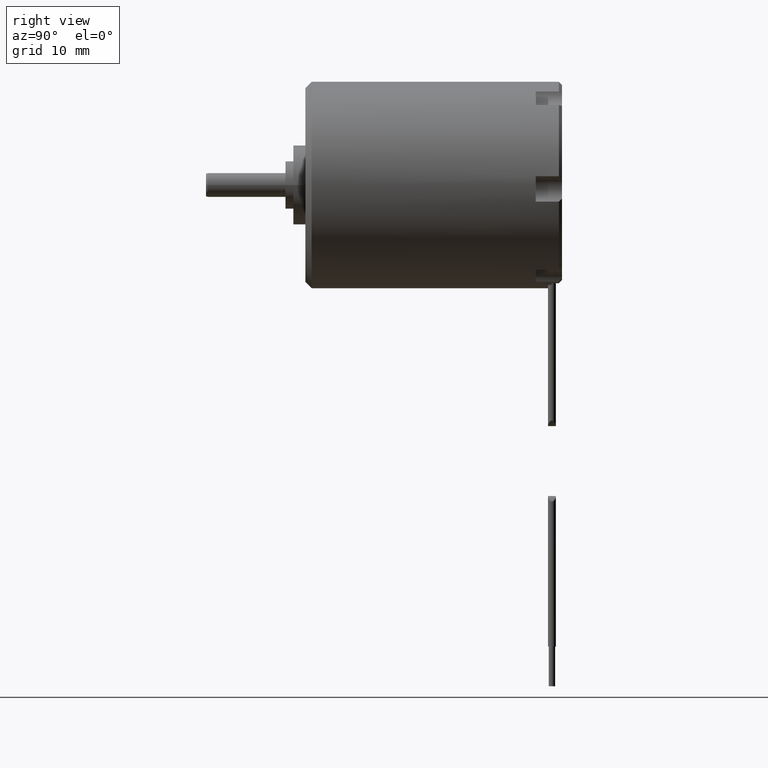
[diagram: clean part render]
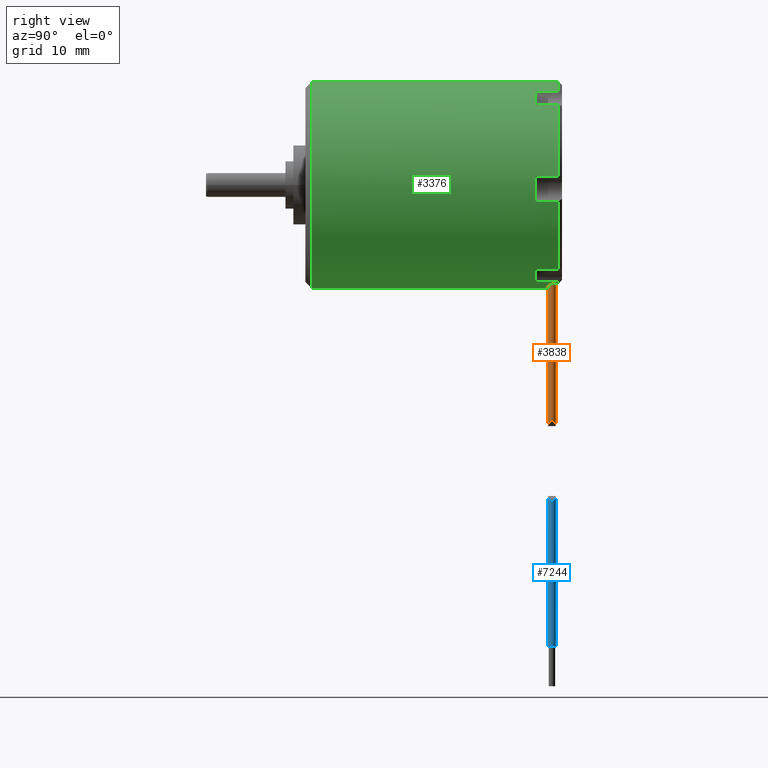
[diagram: same view with three faces highlighted in distinct colors, each labeled with its STEP entity id]
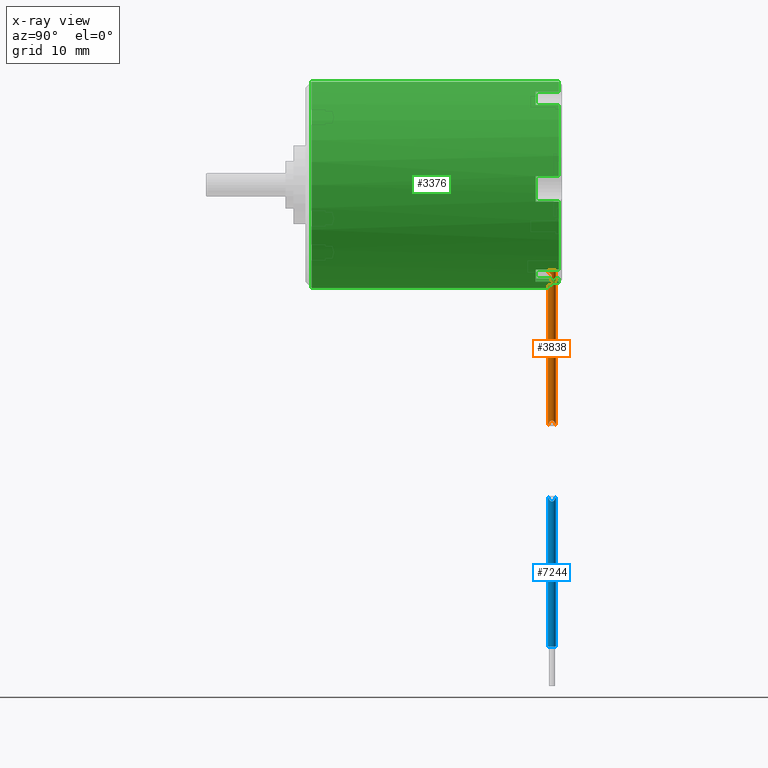
[diagram: x-ray of the same camera — body ghosted, the three highlighted faces saturated]
A machine part, right view with three faces highlighted in distinct colors.
The next image is the same camera in x-ray (body ghosted, the three faces saturated) — at least one of them is partly hidden behind the body in this view.
Their STEP definitions:

[orange] entity #3838 — the highlighted cylindrical surface (edge-blend (fillet) strip) has radius 0.5 mm, axis along (0, 0, 1).
#313=CARTESIAN_POINT('',(3.398791732546E0,3.1E1,-1.254783705500E1));
#314=CARTESIAN_POINT('',(3.394312120420E0,3.093568079764E1,-1.254905043294E1));
#315=CARTESIAN_POINT('',(3.362732617110E0,3.081773469534E1,-1.255762613023E1));
#316=CARTESIAN_POINT('',(3.251781683895E0,3.066196745552E1,-1.258702261599E1));
#317=CARTESIAN_POINT('',(3.086303110762E0,3.055829466512E1,-1.262876389121E1));
#318=CARTESIAN_POINT('',(2.965338281558E0,3.053473913562E1,-1.265745873138E1));
#319=CARTESIAN_POINT('',(2.9E0,3.053473913562E1,-1.267241097818E1));
#419=DIRECTION('',(2.319317498673E-14,0.E0,1.E0));
#420=VECTOR('',#419,1.225434182542E0);
#421=CARTESIAN_POINT('',(3.398791732546E0,3.1E1,-1.254783705500E1));
#422=LINE('',#421,#420);
#614=CARTESIAN_POINT('',(2.9E0,3.053473913562E1,-1.102240287245E1));
#615=CARTESIAN_POINT('',(2.951162012885E0,3.053473913562E1,-1.102240287245E1));
#616=CARTESIAN_POINT('',(3.047392273459E0,3.054967371817E1,-1.102312626955E1));
#617=CARTESIAN_POINT('',(3.179543536097E0,3.061204342693E1,-1.103172400587E1));
#618=CARTESIAN_POINT('',(3.281366374306E0,3.070307619580E1,-1.106017669187E1));
#619=CARTESIAN_POINT('',(3.346517696429E0,3.080150561277E1,-1.111662027678E1));
#620=CARTESIAN_POINT('',(3.381565565633E0,3.089122233641E1,-1.120075060202E1));
#621=CARTESIAN_POINT('',(3.391593916948E0,3.094139139034E1,-1.128115336293E1));
#622=CARTESIAN_POINT('',(3.394477117224E0,3.096062853893E1,-1.132671748778E1));
#793=CARTESIAN_POINT('',(3.394477117224E0,3.096062853893E1,-1.132671748778E1));
#794=CARTESIAN_POINT('',(3.396427280678E0,3.097364032463E1,-1.132476732432E1));
#795=CARTESIAN_POINT('',(3.397869834306E0,3.098676319338E1,-1.132332477070E1));
#796=CARTESIAN_POINT('',(3.398791732546E0,3.1E1,-1.132240287246E1));
#814=DIRECTION('',(2.154441496127E-14,0.E0,-1.E0));
#815=VECTOR('',#814,1.760327146937E1);
#816=CARTESIAN_POINT('',(2.9E0,3.053473913562E1,-1.267241097818E1));
#817=LINE('',#816,#815);
#832=DIRECTION('',(-1.915331897278E-14,0.E0,1.E0));
#833=VECTOR('',#832,1.975448784255E1);
#834=CARTESIAN_POINT('',(2.9E0,3.153473913562E1,-3.027568244755E1));
#835=LINE('',#834,#833);
#836=DIRECTION('',(0.E0,-1.417659647495E-14,-1.E0));
#837=VECTOR('',#836,5.012082674539E-1);
#838=CARTESIAN_POINT('',(2.9E0,3.053473913562E1,-1.052119460500E1));
#839=LINE('',#838,#837);
#840=CARTESIAN_POINT('',(2.9E0,3.053473913562E1,-3.027568244755E1));
#841=CARTESIAN_POINT('',(2.925432715187E0,3.053473913562E1,-3.025994996704E1));
#842=CARTESIAN_POINT('',(2.977435703539E0,3.053867767633E1,-3.022259922277E1));
#843=CARTESIAN_POINT('',(3.056031003367E0,3.055724301023E1,-3.015028069657E1));
#844=CARTESIAN_POINT('',(3.136519107622E0,3.059122230215E1,-3.005966884579E1));
#845=CARTESIAN_POINT('',(3.209474107819E0,3.063914609192E1,-2.996279249801E1));
#846=CARTESIAN_POINT('',(3.265959456699E0,3.069144687698E1,-2.987873797060E1));
#847=CARTESIAN_POINT('',(3.310668460892E0,3.074674900908E1,-2.980695882044E1));
#848=CARTESIAN_POINT('',(3.345342899668E0,3.080430339721E1,-2.974801805756E1));
#849=CARTESIAN_POINT('',(3.371084275603E0,3.086325218428E1,-2.970245645620E1));
#850=CARTESIAN_POINT('',(3.388451223789E0,3.092246511062E1,-2.967084694183E1));
#851=CARTESIAN_POINT('',(3.397980788989E0,3.097942929723E1,-2.965321209817E1));
#852=CARTESIAN_POINT('',(3.400989241579E0,3.103437984768E1,-2.964760440353E1));
#853=CARTESIAN_POINT('',(3.398061444277E0,3.108929466313E1,-2.965306198861E1));
#854=CARTESIAN_POINT('',(3.388631516776E0,3.114622713662E1,-2.967051518082E1));
#855=CARTESIAN_POINT('',(3.371338234381E0,3.120554243618E1,-2.970200038210E1));
#856=CARTESIAN_POINT('',(3.345629786320E0,3.126462347496E1,-2.974751881964E1));
#857=CARTESIAN_POINT('',(3.311000048126E0,3.132227179900E1,-2.980641381380E1));
#858=CARTESIAN_POINT('',(3.266210372577E0,3.137775872409E1,-2.987834646390E1));
#859=CARTESIAN_POINT('',(3.209971649536E0,3.142993241739E1,-2.996208234806E1));
#860=CARTESIAN_POINT('',(3.136900833375E0,3.147808796508E1,-3.005922921683E1));
#861=CARTESIAN_POINT('',(3.055932068205E0,3.151227937189E1,-3.015039529565E1));
#862=CARTESIAN_POINT('',(2.977459907704E0,3.153078880106E1,-3.022257003379E1));
#863=CARTESIAN_POINT('',(2.925430165610E0,3.153473913562E1,-3.025995154419E1));
#864=CARTESIAN_POINT('',(2.9E0,3.153473913562E1,-3.027568244755E1));
#871=CARTESIAN_POINT('',(2.9E0,3.103473913562E1,-1.052119460500E1));
#872=DIRECTION('',(0.E0,0.E0,-1.E0));
#873=DIRECTION('',(0.E0,1.E0,0.E0));
#874=AXIS2_PLACEMENT_3D('',#871,#872,#873);
#2887=VERTEX_POINT('',#840);
#2888=VERTEX_POINT('',#864);
#2889=CARTESIAN_POINT('',(2.9E0,3.153473913562E1,-1.052119460500E1));
#2890=VERTEX_POINT('',#2889);
#2891=CARTESIAN_POINT('',(2.9E0,3.053473913562E1,-1.052119460500E1));
#2892=VERTEX_POINT('',#2891);
#2983=VERTEX_POINT('',#313);
#2984=VERTEX_POINT('',#319);
#2986=CARTESIAN_POINT('',(3.398791732546E0,3.1E1,-1.132240287246E1));
#2987=VERTEX_POINT('',#2986);
#2990=VERTEX_POINT('',#614);
#2991=VERTEX_POINT('',#622);
#3817=CARTESIAN_POINT('',(2.9E0,3.103473913562E1,-3.067077220440E1));
#3818=DIRECTION('',(0.E0,0.E0,1.E0));
#3819=DIRECTION('',(0.E0,-1.E0,0.E0));
#3820=AXIS2_PLACEMENT_3D('',#3817,#3818,#3819);
#3821=CYLINDRICAL_SURFACE('',#3820,5.E-1);
#3822=ORIENTED_EDGE('',*,*,#3344,.F.);
#3823=ORIENTED_EDGE('',*,*,#3435,.T.);
#3824=ORIENTED_EDGE('',*,*,#3798,.F.);
#3825=ORIENTED_EDGE('',*,*,#3556,.F.);
#3827=ORIENTED_EDGE('',*,*,#3826,.F.);
#3829=ORIENTED_EDGE('',*,*,#3828,.F.);
#3831=ORIENTED_EDGE('',*,*,#3830,.F.);
#3833=ORIENTED_EDGE('',*,*,#3832,.F.);
#3835=ORIENTED_EDGE('',*,*,#3834,.F.);
#3836=EDGE_LOOP('',(#3822,#3823,#3824,#3825,#3827,#3829,#3831,#3833,#3835));
#3837=FACE_OUTER_BOUND('',#3836,.F.);
#3838=ADVANCED_FACE('',(#3837),#3821,.T.);
#320=B_SPLINE_CURVE_WITH_KNOTS('',3,(#313,#314,#315,#316,#317,#318,#319),
.UNSPECIFIED.,.F.,.F.,(4,1,1,1,4),(0.E0,2.5E-1,5.E-1,7.5E-1,1.E0),
.UNSPECIFIED.);
#623=B_SPLINE_CURVE_WITH_KNOTS('',3,(#614,#615,#616,#617,#618,#619,#620,#621,
#622),.UNSPECIFIED.,.F.,.F.,(4,1,1,1,1,1,4),(0.E0,1.666666666667E-1,
3.333333333333E-1,5.E-1,6.666666666667E-1,8.333333333333E-1,1.E0),
.UNSPECIFIED.);
#797=B_SPLINE_CURVE_WITH_KNOTS('',3,(#793,#794,#795,#796),.UNSPECIFIED.,.F.,.F.,
(4,4),(0.E0,1.E0),.UNSPECIFIED.);
#865=B_SPLINE_CURVE_WITH_KNOTS('',3,(#840,#841,#842,#843,#844,#845,#846,#847,
#848,#849,#850,#851,#852,#853,#854,#855,#856,#857,#858,#859,#860,#861,#862,#863,
#864),.UNSPECIFIED.,.F.,.F.,(4,1,1,1,1,1,1,1,1,1,1,1,1,1,1,1,1,1,1,1,1,1,4),(
0.E0,4.545454545455E-2,9.090909090909E-2,1.363636363636E-1,1.818181818182E-1,
2.272727272727E-1,2.727272727273E-1,3.181818181818E-1,3.636363636364E-1,
4.090909090909E-1,4.545454545455E-1,5.E-1,5.454545454545E-1,5.909090909091E-1,
6.363636363636E-1,6.818181818182E-1,7.272727272727E-1,7.727272727273E-1,
8.181818181818E-1,8.636363636364E-1,9.090909090909E-1,9.545454545455E-1,1.E0),
.UNSPECIFIED.);
#875=CIRCLE('',#874,5.E-1);
#3344=EDGE_CURVE('',#2983,#2984,#320,.T.);
#3435=EDGE_CURVE('',#2983,#2987,#422,.T.);
#3556=EDGE_CURVE('',#2990,#2991,#623,.T.);
#3798=EDGE_CURVE('',#2991,#2987,#797,.T.);
#3826=EDGE_CURVE('',#2892,#2990,#839,.T.);
#3828=EDGE_CURVE('',#2890,#2892,#875,.T.);
#3830=EDGE_CURVE('',#2888,#2890,#835,.T.);
#3832=EDGE_CURVE('',#2887,#2888,#865,.T.);
#3834=EDGE_CURVE('',#2984,#2887,#817,.T.);

[blue] entity #7244 — the highlighted cylindrical surface (edge-blend (fillet) strip) has radius 0.5 mm, axis along (0, 0, 1).
#7103=CARTESIAN_POINT('',(2.9E0,3.103473913562E1,-5.808762714781E1));
#7104=DIRECTION('',(0.E0,0.E0,1.E0));
#7105=DIRECTION('',(0.E0,-1.E0,0.E0));
#7106=AXIS2_PLACEMENT_3D('',#7103,#7104,#7105);
#7123=CARTESIAN_POINT('',(2.9E0,3.153473913562E1,-3.920940169857E1));
#7124=CARTESIAN_POINT('',(2.925430360120E0,3.153473913562E1,-3.922513272225E1));
#7125=CARTESIAN_POINT('',(2.977432326956E0,3.153080380112E1,-3.926247886083E1));
#7126=CARTESIAN_POINT('',(3.056087100261E0,3.151221764318E1,-3.933486028074E1));
#7127=CARTESIAN_POINT('',(3.136514530707E0,3.147825197480E1,-3.942541541716E1));
#7128=CARTESIAN_POINT('',(3.209402334475E0,3.143038389588E1,-3.952219281565E1));
#7129=CARTESIAN_POINT('',(3.265865084149E0,3.137812834918E1,-3.960620119524E1));
#7130=CARTESIAN_POINT('',(3.310552908632E0,3.132288931560E1,-3.967793494144E1));
#7131=CARTESIAN_POINT('',(3.345229508959E0,3.126539003145E1,-3.973686931402E1));
#7132=CARTESIAN_POINT('',(3.370983907748E0,3.120649546627E1,-3.978244736692E1));
#7133=CARTESIAN_POINT('',(3.388378675750E0,3.114732834250E1,-3.981410376670E1));
#7134=CARTESIAN_POINT('',(3.397949684862E0,3.109033975144E1,-3.983181414160E1));
#7135=CARTESIAN_POINT('',(3.400988830394E0,3.103537794103E1,-3.983747897759E1));
#7136=CARTESIAN_POINT('',(3.398092467697E0,3.098047626308E1,-3.983207991340E1));
#7137=CARTESIAN_POINT('',(3.388700833250E0,3.092355308244E1,-3.981469647466E1));
#7138=CARTESIAN_POINT('',(3.371430914739E0,3.086418422870E1,-3.978325029104E1));
#7139=CARTESIAN_POINT('',(3.345725188671E0,3.080503398308E1,-3.973773061003E1));
#7140=CARTESIAN_POINT('',(3.311086028227E0,3.074732545421E1,-3.967881211997E1));
#7141=CARTESIAN_POINT('',(3.266274022769E0,3.069178154220E1,-3.960683401957E1));
#7142=CARTESIAN_POINT('',(3.209975088322E0,3.063954490652E1,-3.952300435485E1));
#7143=CARTESIAN_POINT('',(3.136903080923E0,3.059139411833E1,-3.942585991692E1));
#7144=CARTESIAN_POINT('',(3.055967599176E0,3.055721021775E1,-3.933472499724E1));
#7145=CARTESIAN_POINT('',(2.977458965496E0,3.053868760602E1,-3.926251124224E1));
#7146=CARTESIAN_POINT('',(2.925429037192E0,3.053473913562E1,-3.922513190390E1));
#7147=CARTESIAN_POINT('',(2.9E0,3.053473913562E1,-3.920940169857E1));
#7172=DIRECTION('',(-2.587627381337E-14,0.E0,-1.E0));
#7173=VECTOR('',#7172,1.887822544924E1);
#7174=CARTESIAN_POINT('',(2.9E0,3.053473913562E1,-3.920940169857E1));
#7175=LINE('',#7174,#7173);
#7176=DIRECTION('',(2.587627381337E-14,0.E0,1.E0));
#7177=VECTOR('',#7176,1.887822544924E1);
#7178=CARTESIAN_POINT('',(2.9E0,3.153473913562E1,-5.808762714781E1));
#7179=LINE('',#7178,#7177);
#7198=CARTESIAN_POINT('',(2.9E0,3.053473913562E1,-5.808762714781E1));
#7199=CARTESIAN_POINT('',(2.9E0,3.153473913562E1,-5.808762714781E1));
#7200=VERTEX_POINT('',#7198);
#7201=VERTEX_POINT('',#7199);
#7206=VERTEX_POINT('',#7123);
#7207=VERTEX_POINT('',#7147);
#7230=CARTESIAN_POINT('',(2.9E0,3.103473913562E1,-5.846519165680E1));
#7231=DIRECTION('',(0.E0,0.E0,1.E0));
#7232=DIRECTION('',(0.E0,-1.E0,0.E0));
#7233=AXIS2_PLACEMENT_3D('',#7230,#7231,#7232);
#7234=CYLINDRICAL_SURFACE('',#7233,5.E-1);
#7236=ORIENTED_EDGE('',*,*,#7235,.F.);
#7238=ORIENTED_EDGE('',*,*,#7237,.F.);
#7239=ORIENTED_EDGE('',*,*,#7217,.F.);
#7241=ORIENTED_EDGE('',*,*,#7240,.F.);
#7242=EDGE_LOOP('',(#7236,#7238,#7239,#7241));
#7243=FACE_OUTER_BOUND('',#7242,.F.);
#7244=ADVANCED_FACE('',(#7243),#7234,.T.);
#7107=CIRCLE('',#7106,5.E-1);
#7148=B_SPLINE_CURVE_WITH_KNOTS('',3,(#7123,#7124,#7125,#7126,#7127,#7128,#7129,
#7130,#7131,#7132,#7133,#7134,#7135,#7136,#7137,#7138,#7139,#7140,#7141,#7142,
#7143,#7144,#7145,#7146,#7147),.UNSPECIFIED.,.F.,.F.,(4,1,1,1,1,1,1,1,1,1,1,1,1,
1,1,1,1,1,1,1,1,1,4),(0.E0,4.545454545455E-2,9.090909090909E-2,
1.363636363636E-1,1.818181818182E-1,2.272727272727E-1,2.727272727273E-1,
3.181818181818E-1,3.636363636364E-1,4.090909090909E-1,4.545454545455E-1,5.E-1,
5.454545454545E-1,5.909090909091E-1,6.363636363636E-1,6.818181818182E-1,
7.272727272727E-1,7.727272727273E-1,8.181818181818E-1,8.636363636364E-1,
9.090909090909E-1,9.545454545455E-1,1.E0),.UNSPECIFIED.);
#7217=EDGE_CURVE('',#7200,#7201,#7107,.T.);
#7235=EDGE_CURVE('',#7206,#7207,#7148,.T.);
#7237=EDGE_CURVE('',#7201,#7206,#7179,.T.);
#7240=EDGE_CURVE('',#7207,#7200,#7175,.T.);

[green] entity #3376 — the highlighted cylindrical surface (partial cylindrical patch) has radius 13 mm, axis along (0, -1, 0).
#177=CARTESIAN_POINT('',(0.E0,2.9E1,0.E0));
#178=DIRECTION('',(0.E0,-1.E0,0.E0));
#179=DIRECTION('',(9.869516052119E-1,0.E0,-1.610171697975E-1));
#180=AXIS2_PLACEMENT_3D('',#177,#178,#179);
#187=CARTESIAN_POINT('',(0.E0,2.9E1,0.E0));
#188=DIRECTION('',(0.E0,-1.E0,0.E0));
#189=DIRECTION('',(3.540308430648E-1,0.E0,-9.352337473374E-1));
#190=AXIS2_PLACEMENT_3D('',#187,#188,#189);
#197=CARTESIAN_POINT('',(0.E0,2.9E1,0.E0));
#198=DIRECTION('',(0.E0,-1.E0,0.E0));
#199=DIRECTION('',(6.329207621011E-1,0.E0,7.742165775165E-1));
#200=AXIS2_PLACEMENT_3D('',#197,#198,#199);
#249=CARTESIAN_POINT('',(1.283037086761E1,3.190000000011E1,-2.093223208510E0));
#261=CARTESIAN_POINT('',(7.434280041686E0,3.190000000010E1,-1.066449624964E1));
#263=CARTESIAN_POINT('',(-2.601208267454E0,3.1E1,-1.273709996621E1));
#264=CARTESIAN_POINT('',(-2.605713447731E0,3.093531368482E1,-1.273617990496E1));
#265=CARTESIAN_POINT('',(-2.637587106762E0,3.081688626126E1,-1.272969217454E1));
#266=CARTESIAN_POINT('',(-2.749075228736E0,3.066123014328E1,-1.270628431671E1));
#267=CARTESIAN_POINT('',(-2.914061979145E0,3.055822883820E1,-1.266961119789E1));
#268=CARTESIAN_POINT('',(-3.034874419689E0,3.053473913562E1,-1.264096651045E1));
#269=CARTESIAN_POINT('',(-3.1E0,3.053473913562E1,-1.262497524750E1));
#271=CARTESIAN_POINT('',(-3.1E0,3.053473913562E1,-1.262497524750E1));
#272=CARTESIAN_POINT('',(-3.165908612687E0,3.053473913562E1,-1.260879171483E1));
#273=CARTESIAN_POINT('',(-3.287601823841E0,3.055862375894E1,-1.257786967710E1));
#274=CARTESIAN_POINT('',(-3.453342456059E0,3.066357475140E1,-1.253322071087E1));
#275=CARTESIAN_POINT('',(-3.562663605399E0,3.081803425582E1,-1.250237251828E1));
#276=CARTESIAN_POINT('',(-3.594319859579E0,3.093579191810E1,-1.249323362482E1));
#277=CARTESIAN_POINT('',(-3.598791732546E0,3.1E1,-1.249194532752E1));
#279=DIRECTION('',(-8.542861436960E-10,1.E0,-3.915856144883E-10));
#280=VECTOR('',#279,2.900000000153E0);
#281=CARTESIAN_POINT('',(-4.602400959842E0,2.9E1,1.215803871539E1));
#282=LINE('',#281,#280);
#283=DIRECTION('',(7.158656808720E-10,1.E0,-4.851806312776E-10));
#284=VECTOR('',#283,2.900000000153E0);
#285=CARTESIAN_POINT('',(8.227969907314E0,2.9E1,1.006481550771E1));
#286=LINE('',#285,#284);
#287=CARTESIAN_POINT('',(0.E0,3.19E1,0.E0));
#288=DIRECTION('',(0.E0,1.E0,0.E0));
#289=DIRECTION('',(6.329207622210E-1,0.E0,7.742165774184E-1));
#290=AXIS2_PLACEMENT_3D('',#287,#288,#289);
#292=DIRECTION('',(1.571769534412E-12,-1.E0,9.657486304688E-10));
#293=VECTOR('',#292,2.900000000067E0);
#294=CARTESIAN_POINT('',(1.295286469156E1,3.190000000007E1,1.106027249139E0));
#295=LINE('',#294,#293);
#296=DIRECTION('',(-4.847310292438E-11,1.E0,-3.939777239933E-10));
#297=VECTOR('',#296,2.900000000108E0);
#298=CARTESIAN_POINT('',(1.283037086776E1,2.9E1,-2.093223207368E0));
#299=LINE('',#298,#297);
#300=CARTESIAN_POINT('',(0.E0,3.19E1,0.E0));
#301=DIRECTION('',(0.E0,1.E0,0.E0));
#302=DIRECTION('',(9.869516051794E-1,0.E0,-1.610171699966E-1));
#303=AXIS2_PLACEMENT_3D('',#300,#301,#302);
#305=DIRECTION('',(3.942146226179E-10,-1.E0,2.216672822234E-10));
#306=VECTOR('',#305,2.900000000098E0);
#307=CARTESIAN_POINT('',(7.434280041686E0,3.190000000010E1,-1.066449624964E1));
#308=LINE('',#307,#306);
#309=DIRECTION('',(2.055532755393E-10,1.E0,1.410604966093E-10));
#310=VECTOR('',#309,2.900000000153E0);
#311=CARTESIAN_POINT('',(4.602400959842E0,2.9E1,-1.215803871539E1));
#312=LINE('',#311,#310);
#313=CARTESIAN_POINT('',(3.398791732546E0,3.1E1,-1.254783705500E1));
#314=CARTESIAN_POINT('',(3.394312120420E0,3.093568079764E1,-1.254905043294E1));
#315=CARTESIAN_POINT('',(3.362732617110E0,3.081773469534E1,-1.255762613023E1));
#316=CARTESIAN_POINT('',(3.251781683895E0,3.066196745552E1,-1.258702261599E1));
#317=CARTESIAN_POINT('',(3.086303110762E0,3.055829466512E1,-1.262876389121E1));
#318=CARTESIAN_POINT('',(2.965338281558E0,3.053473913562E1,-1.265745873138E1));
#319=CARTESIAN_POINT('',(2.9E0,3.053473913562E1,-1.267241097818E1));
#321=CARTESIAN_POINT('',(2.9E0,3.053473913562E1,-1.267241097818E1));
#322=CARTESIAN_POINT('',(2.833402828232E0,3.053473913562E1,-1.268765131394E1));
#323=CARTESIAN_POINT('',(2.710687838247E0,3.055966642469E1,-1.271466729948E1));
#324=CARTESIAN_POINT('',(2.548979011293E0,3.066179855604E1,-1.274792044203E1));
#325=CARTESIAN_POINT('',(2.437711433634E0,3.081658892823E1,-1.276947709630E1));
#326=CARTESIAN_POINT('',(2.405726640310E0,3.093512426303E1,-1.277546478485E1));
#327=CARTESIAN_POINT('',(2.401208267454E0,3.1E1,-1.277631397768E1));
#329=CARTESIAN_POINT('',(2.198791732546E0,3.1E1,-1.281270131225E1));
#330=CARTESIAN_POINT('',(2.194268086290E0,3.093504854645E1,-1.281347761662E1));
#331=CARTESIAN_POINT('',(2.162169326083E0,3.081627012478E1,-1.281900737574E1));
#332=CARTESIAN_POINT('',(2.050295440325E0,3.066060504519E1,-1.283757268217E1));
#333=CARTESIAN_POINT('',(1.885057082309E0,3.055793612916E1,-1.286301003515E1));
#334=CARTESIAN_POINT('',(1.764802374070E0,3.053473913562E1,-1.287981929178E1));
#335=CARTESIAN_POINT('',(1.7E0,3.053473913562E1,-1.288836684767E1));
#337=CARTESIAN_POINT('',(1.7E0,3.053473913562E1,-1.288836684767E1));
#338=CARTESIAN_POINT('',(1.635017222639E0,3.053473913562E1,-1.289693819909E1));
#339=CARTESIAN_POINT('',(1.514483769018E0,3.055803598142E1,-1.291188405637E1));
#340=CARTESIAN_POINT('',(1.349289409317E0,3.066115571571E1,-1.293005176025E1));
#341=CARTESIAN_POINT('',(1.238290934096E0,3.081551968514E1,-1.294096223203E1));
#342=CARTESIAN_POINT('',(1.205755609963E0,3.093470831073E1,-1.294396285013E1));
#343=CARTESIAN_POINT('',(1.201208267454E0,3.1E1,-1.294438483275E1));
#345=CARTESIAN_POINT('',(9.987917325461E-1,3.1E1,-1.296157456002E1));
#346=CARTESIAN_POINT('',(9.942441640985E-1,3.093470506665E1,-1.296192498610E1));
#347=CARTESIAN_POINT('',(9.618638522174E-1,3.081547449577E1,-1.296444115717E1));
#348=CARTESIAN_POINT('',(8.494743021264E-1,3.065986203665E1,-1.297248050947E1));
#349=CARTESIAN_POINT('',(6.844193093397E-1,3.055776022392E1,-1.298236492475E1));
#350=CARTESIAN_POINT('',(5.645238013607E-1,3.053473913562E1,-1.298789753449E1));
#351=CARTESIAN_POINT('',(5.E-1,3.053473913562E1,-1.299038105677E1));
#353=CARTESIAN_POINT('',(5.E-1,3.053473913562E1,-1.299038105677E1));
#354=CARTESIAN_POINT('',(4.351521580691E-1,3.053473913562E1,-1.299287705137E1));
#355=CARTESIAN_POINT('',(3.148357196699E-1,3.055793763677E1,-1.299658159678E1));
#356=CARTESIAN_POINT('',(1.497042266E-1,3.066077380849E1,-1.299939807770E1));
#357=CARTESIAN_POINT('',(3.844498814845E-2,3.081512098055E1,-1.300001504346E1));
#358=CARTESIAN_POINT('',(5.767680144670E-3,3.093453500455E1,-1.299999952008E1));
#359=CARTESIAN_POINT('',(1.208267453865E-3,3.1E1,-1.299999994385E1));
#361=CARTESIAN_POINT('',(-2.012082674539E-1,3.1E1,-1.299844280032E1));
#362=CARTESIAN_POINT('',(-2.057606912703E-1,3.093463535226E1,
-1.299837233147E1));
#363=CARTESIAN_POINT('',(-2.381968628115E-1,3.081531309533E1,
-1.299789121248E1));
#364=CARTESIAN_POINT('',(-3.506947689044E-1,3.065971720575E1,
-1.299553169917E1));
#365=CARTESIAN_POINT('',(-5.156533065693E-1,3.055774749873E1,
-1.299016186942E1));
#366=CARTESIAN_POINT('',(-6.355172600067E-1,3.053473913562E1,
-1.298461735774E1));
#367=CARTESIAN_POINT('',(-7.E-1,3.053473913562E1,-1.298114016564E1));
#369=CARTESIAN_POINT('',(-7.E-1,3.053473913562E1,-1.298114016564E1));
#370=CARTESIAN_POINT('',(-7.649503989084E-1,3.053473913562E1,
-1.297763775532E1));
#371=CARTESIAN_POINT('',(-8.853807627498E-1,3.055799780144E1,
-1.297021259123E1));
#372=CARTESIAN_POINT('',(-1.050581945079E0,3.066103340109E1,-1.295774201007E1));
#373=CARTESIAN_POINT('',(-1.161657599560E0,3.081539071832E1,-1.294806645691E1));
#374=CARTESIAN_POINT('',(-1.194240374308E0,3.093465065205E1,-1.294503035226E1));
#375=CARTESIAN_POINT('',(-1.198791732546E0,3.1E1,-1.294460885396E1));
#377=CARTESIAN_POINT('',(-1.401208267454E0,3.1E1,-1.292426459769E1));
#378=CARTESIAN_POINT('',(-1.405746671721E0,3.093483664785E1,-1.292377255813E1));
#379=CARTESIAN_POINT('',(-1.438014821205E0,3.081577975654E1,-1.292029530582E1));
#380=CARTESIAN_POINT('',(-1.550214888699E0,3.066016692586E1,-1.290750696501E1));
#381=CARTESIAN_POINT('',(-1.715161087739E0,3.055789776660E1,-1.288676110609E1));
#382=CARTESIAN_POINT('',(-1.835322217863E0,3.053473913562E1,-1.286995986318E1));
#383=CARTESIAN_POINT('',(-1.9E0,3.053473913562E1,-1.286040434823E1));
#385=CARTESIAN_POINT('',(-1.9E0,3.053473913562E1,-1.286040434823E1));
#386=CARTESIAN_POINT('',(-1.965296383323E0,3.053473913562E1,-1.285075744095E1));
#387=CARTESIAN_POINT('',(-2.086176601666E0,3.055822016986E1,-1.283193135413E1));
#388=CARTESIAN_POINT('',(-2.251583784401E0,3.066195048064E1,-1.280380064527E1));
#389=CARTESIAN_POINT('',(-2.362021936637E0,3.081634516181E1,-1.278369011064E1));
#390=CARTESIAN_POINT('',(-2.394269049539E0,3.093506237699E1,-1.277761702721E1));
#391=CARTESIAN_POINT('',(-2.398791732546E0,3.1E1,-1.277676790992E1));
#397=CARTESIAN_POINT('',(0.E0,3.1E1,0.E0));
#398=DIRECTION('',(0.E0,-1.E0,0.E0));
#399=DIRECTION('',(-1.547755903491E-2,0.E0,-9.998802154090E-1));
#400=AXIS2_PLACEMENT_3D('',#397,#398,#399);
#410=CARTESIAN_POINT('',(0.E0,3.1E1,0.E0));
#411=DIRECTION('',(0.E0,-1.E0,0.E0));
#412=DIRECTION('',(-1.077852513426E-1,0.E0,-9.941741998227E-1));
#413=AXIS2_PLACEMENT_3D('',#410,#411,#412);
#423=CARTESIAN_POINT('',(0.E0,3.1E1,0.E0));
#424=DIRECTION('',(0.E0,-1.E0,0.E0));
#425=DIRECTION('',(2.614455178882E-1,0.E0,-9.652182349998E-1));
#426=AXIS2_PLACEMENT_3D('',#423,#424,#425);
#436=CARTESIAN_POINT('',(0.E0,3.1E1,0.E0));
#437=DIRECTION('',(0.E0,-1.E0,0.E0));
#438=DIRECTION('',(1.691378255805E-1,0.E0,-9.855924086345E-1));
#439=AXIS2_PLACEMENT_3D('',#436,#437,#438);
#453=CARTESIAN_POINT('',(0.E0,3.1E1,0.E0));
#454=DIRECTION('',(0.E0,-1.E0,0.E0));
#455=DIRECTION('',(7.683013327278E-2,0.E0,-9.970441969247E-1));
#456=AXIS2_PLACEMENT_3D('',#453,#454,#455);
#462=CARTESIAN_POINT('',(0.E0,3.1E1,0.E0));
#463=DIRECTION('',(0.E0,-1.E0,0.E0));
#464=DIRECTION('',(-2.000929436503E-1,0.E0,-9.797769204780E-1));
#465=AXIS2_PLACEMENT_3D('',#462,#463,#464);
#479=CARTESIAN_POINT('',(0.E0,3.1E1,0.E0));
#480=DIRECTION('',(0.E0,-1.E0,0.E0));
#481=DIRECTION('',(-3.103000995412E-1,0.E0,-9.506386528144E-1));
#482=AXIS2_PLACEMENT_3D('',#479,#480,#481);
#767=DIRECTION('',(1.903066345329E-9,1.E0,5.493876954964E-10));
#768=VECTOR('',#767,9.000000005466E-1);
#769=CARTESIAN_POINT('',(4.000000000245E0,3.099999999971E1,-1.236931687645E1));
#770=LINE('',#769,#768);
#916=CARTESIAN_POINT('',(0.E0,3.19E1,0.E0));
#917=DIRECTION('',(0.E0,-1.E0,0.E0));
#918=DIRECTION('',(3.076923081139E-1,0.E0,-9.514859134677E-1));
#919=AXIS2_PLACEMENT_3D('',#916,#917,#918);
#940=DIRECTION('',(1.733290053850E-9,-1.E0,-5.077321276990E-10));
#941=VECTOR('',#940,9.000000004380E-1);
#942=CARTESIAN_POINT('',(-4.033901294841E0,3.189999999990E1,-1.235830248610E1));
#943=LINE('',#942,#941);
#964=CARTESIAN_POINT('',(-5.518584648688E0,3.190000000008E1,-1.177052350067E1));
#966=CARTESIAN_POINT('',(0.E0,3.19E1,0.E0));
#967=DIRECTION('',(0.E0,-1.E0,0.E0));
#968=DIRECTION('',(-4.245065114666E-1,0.E0,-9.054248846384E-1));
#969=AXIS2_PLACEMENT_3D('',#966,#967,#968);
#971=DIRECTION('',(1.130231540511E-10,1.E0,-1.197276760459E-10));
#972=VECTOR('',#971,2.900000000080E0);
#973=CARTESIAN_POINT('',(-5.518584649016E0,2.9E1,-1.177052350032E1));
#974=LINE('',#973,#972);
#1006=CARTESIAN_POINT('',(0.E0,2.9E1,0.E0));
#1007=DIRECTION('',(0.E0,1.E0,0.E0));
#1008=DIRECTION('',(-3.540308430648E-1,0.E0,9.352337473374E-1));
#1009=AXIS2_PLACEMENT_3D('',#1006,#1007,#1008);
#1011=DIRECTION('',(-1.969809791966E-11,-1.E0,1.209434443847E-14));
#1012=VECTOR('',#1011,2.82E1);
#1013=CARTESIAN_POINT('',(-1.555362689773E-9,2.9E1,1.3E1));
#1014=LINE('',#1013,#1012);
#1015=DIRECTION('',(2.746610921431E-11,1.E0,1.209434443847E-14));
#1016=VECTOR('',#1015,2.82E1);
#1017=CARTESIAN_POINT('',(-7.745458718845E-10,7.999999999997E-1,-1.3E1));
#1018=LINE('',#1017,#1016);
#1019=CARTESIAN_POINT('',(0.E0,2.9E1,0.E0));
#1020=DIRECTION('',(0.E0,1.E0,0.E0));
#1021=DIRECTION('',(0.E0,0.E0,-1.E0));
#1022=AXIS2_PLACEMENT_3D('',#1019,#1020,#1021);
#1052=CARTESIAN_POINT('',(5.518584647034E0,3.190000000004E1,1.177052350172E1));
#1054=CARTESIAN_POINT('',(0.E0,3.19E1,0.E0));
#1055=DIRECTION('',(0.E0,-1.E0,0.E0));
#1056=DIRECTION('',(4.245065110950E-1,0.E0,9.054248848126E-1));
#1057=AXIS2_PLACEMENT_3D('',#1054,#1055,#1056);
#1066=DIRECTION('',(-6.832643263340E-10,1.E0,4.807538275453E-10));
#1067=VECTOR('',#1066,2.900000000041E0);
#1068=CARTESIAN_POINT('',(5.518584649016E0,2.9E1,1.177052350032E1));
#1069=LINE('',#1068,#1067);
#1086=CARTESIAN_POINT('',(0.E0,7.999999999993E-1,0.E0));
#1087=DIRECTION('',(0.E0,1.E0,0.E0));
#1088=DIRECTION('',(-4.102050806738E-10,0.E0,1.E0));
#1089=AXIS2_PLACEMENT_3D('',#1086,#1087,#1088);
#2495=CARTESIAN_POINT('',(-7.745458718845E-10,7.999999999997E-1,-1.3E1));
#2497=VERTEX_POINT('',#2495);
#2499=CARTESIAN_POINT('',(-3.110726971586E-9,7.999999999993E-1,1.3E1));
#2500=VERTEX_POINT('',#2499);
#2699=CARTESIAN_POINT('',(-4.033901294841E0,3.189999999990E1,
-1.235830248610E1));
#2700=CARTESIAN_POINT('',(-4.033901293282E0,3.099999999947E1,
-1.235830248655E1));
#2701=VERTEX_POINT('',#2699);
#2702=VERTEX_POINT('',#2700);
#2703=CARTESIAN_POINT('',(4.000000000245E0,3.099999999971E1,-1.236931687645E1));
#2704=CARTESIAN_POINT('',(4.000000001958E0,3.190000000026E1,-1.236931687596E1));
#2705=VERTEX_POINT('',#2703);
#2706=VERTEX_POINT('',#2704);
#2717=VERTEX_POINT('',#1052);
#2718=CARTESIAN_POINT('',(-4.602400961585E0,3.19E1,1.215803871473E1));
#2719=VERTEX_POINT('',#2718);
#2720=CARTESIAN_POINT('',(8.227969908874E0,3.19E1,1.006481550644E1));
#2721=CARTESIAN_POINT('',(1.295286469207E1,3.19E1,1.106027246033E0));
#2722=VERTEX_POINT('',#2720);
#2723=VERTEX_POINT('',#2721);
#2724=VERTEX_POINT('',#249);
#2725=VERTEX_POINT('',#261);
#2726=VERTEX_POINT('',#964);
#2731=CARTESIAN_POINT('',(4.602400960936E0,3.19E1,-1.215803871497E1));
#2732=VERTEX_POINT('',#2731);
#2915=CARTESIAN_POINT('',(0.E0,2.9E1,-1.3E1));
#2916=CARTESIAN_POINT('',(-5.518584649016E0,2.9E1,-1.177052350032E1));
#2917=VERTEX_POINT('',#2915);
#2918=VERTEX_POINT('',#2916);
#2919=CARTESIAN_POINT('',(-4.602400959842E0,2.9E1,1.215803871539E1));
#2920=CARTESIAN_POINT('',(-3.110726787270E-9,2.9E1,1.3E1));
#2921=VERTEX_POINT('',#2919);
#2922=VERTEX_POINT('',#2920);
#2923=CARTESIAN_POINT('',(4.602400959842E0,2.9E1,-1.215803871539E1));
#2924=CARTESIAN_POINT('',(7.434280042830E0,2.9E1,-1.066449624899E1));
#2925=VERTEX_POINT('',#2923);
#2926=VERTEX_POINT('',#2924);
#2927=CARTESIAN_POINT('',(1.283037086776E1,2.9E1,-2.093223207368E0));
#2928=CARTESIAN_POINT('',(1.295286469156E1,2.9E1,1.106027251940E0));
#2929=VERTEX_POINT('',#2927);
#2930=VERTEX_POINT('',#2928);
#2931=CARTESIAN_POINT('',(8.227969907314E0,2.9E1,1.006481550771E1));
#2932=CARTESIAN_POINT('',(5.518584649016E0,2.9E1,1.177052350032E1));
#2933=VERTEX_POINT('',#2931);
#2934=VERTEX_POINT('',#2932);
#2959=VERTEX_POINT('',#345);
#2960=VERTEX_POINT('',#351);
#2961=VERTEX_POINT('',#359);
#2967=VERTEX_POINT('',#361);
#2968=VERTEX_POINT('',#367);
#2969=VERTEX_POINT('',#375);
#2975=VERTEX_POINT('',#377);
#2976=VERTEX_POINT('',#383);
#2977=VERTEX_POINT('',#391);
#2983=VERTEX_POINT('',#313);
#2984=VERTEX_POINT('',#319);
#2985=VERTEX_POINT('',#327);
#2992=VERTEX_POINT('',#329);
#2993=VERTEX_POINT('',#335);
#2994=VERTEX_POINT('',#343);
#3000=VERTEX_POINT('',#263);
#3001=VERTEX_POINT('',#269);
#3002=VERTEX_POINT('',#277);
#3293=CARTESIAN_POINT('',(0.E0,2.9564E1,0.E0));
#3294=DIRECTION('',(0.E0,-1.E0,0.E0));
#3295=DIRECTION('',(0.E0,0.E0,-1.E0));
#3296=AXIS2_PLACEMENT_3D('',#3293,#3294,#3295);
#3297=CYLINDRICAL_SURFACE('',#3296,1.3E1);
#3299=ORIENTED_EDGE('',*,*,#3298,.T.);
#3301=ORIENTED_EDGE('',*,*,#3300,.T.);
#3303=ORIENTED_EDGE('',*,*,#3302,.F.);
#3305=ORIENTED_EDGE('',*,*,#3304,.F.);
#3307=ORIENTED_EDGE('',*,*,#3306,.F.);
#3309=ORIENTED_EDGE('',*,*,#3308,.F.);
#3311=ORIENTED_EDGE('',*,*,#3310,.F.);
#3313=ORIENTED_EDGE('',*,*,#3312,.F.);
#3315=ORIENTED_EDGE('',*,*,#3314,.F.);
#3317=ORIENTED_EDGE('',*,*,#3316,.F.);
#3319=ORIENTED_EDGE('',*,*,#3318,.F.);
#3321=ORIENTED_EDGE('',*,*,#3320,.T.);
#3323=ORIENTED_EDGE('',*,*,#3322,.F.);
#3325=ORIENTED_EDGE('',*,*,#3324,.F.);
#3326=ORIENTED_EDGE('',*,*,#3221,.F.);
#3328=ORIENTED_EDGE('',*,*,#3327,.T.);
#3330=ORIENTED_EDGE('',*,*,#3329,.T.);
#3331=ORIENTED_EDGE('',*,*,#3273,.T.);
#3332=ORIENTED_EDGE('',*,*,#3198,.F.);
#3333=ORIENTED_EDGE('',*,*,#3270,.T.);
#3334=ORIENTED_EDGE('',*,*,#3288,.T.);
#3335=ORIENTED_EDGE('',*,*,#3179,.T.);
#3336=ORIENTED_EDGE('',*,*,#3209,.F.);
#3337=ORIENTED_EDGE('',*,*,#3186,.T.);
#3339=ORIENTED_EDGE('',*,*,#3338,.F.);
#3341=ORIENTED_EDGE('',*,*,#3340,.F.);
#3343=ORIENTED_EDGE('',*,*,#3342,.F.);
#3345=ORIENTED_EDGE('',*,*,#3344,.T.);
#3347=ORIENTED_EDGE('',*,*,#3346,.T.);
#3349=ORIENTED_EDGE('',*,*,#3348,.F.);
#3351=ORIENTED_EDGE('',*,*,#3350,.T.);
#3353=ORIENTED_EDGE('',*,*,#3352,.T.);
#3355=ORIENTED_EDGE('',*,*,#3354,.F.);
#3357=ORIENTED_EDGE('',*,*,#3356,.T.);
#3359=ORIENTED_EDGE('',*,*,#3358,.T.);
#3361=ORIENTED_EDGE('',*,*,#3360,.F.);
#3363=ORIENTED_EDGE('',*,*,#3362,.T.);
#3365=ORIENTED_EDGE('',*,*,#3364,.T.);
#3367=ORIENTED_EDGE('',*,*,#3366,.F.);
#3369=ORIENTED_EDGE('',*,*,#3368,.T.);
#3371=ORIENTED_EDGE('',*,*,#3370,.T.);
#3373=ORIENTED_EDGE('',*,*,#3372,.F.);
#3374=EDGE_LOOP('',(#3299,#3301,#3303,#3305,#3307,#3309,#3311,#3313,#3315,#3317,
#3319,#3321,#3323,#3325,#3326,#3328,#3330,#3331,#3332,#3333,#3334,#3335,#3336,
#3337,#3339,#3341,#3343,#3345,#3347,#3349,#3351,#3353,#3355,#3357,#3359,#3361,
#3363,#3365,#3367,#3369,#3371,#3373));
#3375=FACE_OUTER_BOUND('',#3374,.F.);
#3376=ADVANCED_FACE('',(#3375),#3297,.T.);
#181=CIRCLE('',#180,1.3E1);
#191=CIRCLE('',#190,1.3E1);
#201=CIRCLE('',#200,1.3E1);
#270=B_SPLINE_CURVE_WITH_KNOTS('',3,(#263,#264,#265,#266,#267,#268,#269),
.UNSPECIFIED.,.F.,.F.,(4,1,1,1,4),(0.E0,2.5E-1,5.E-1,7.5E-1,1.E0),
.UNSPECIFIED.);
#278=B_SPLINE_CURVE_WITH_KNOTS('',3,(#271,#272,#273,#274,#275,#276,#277),
.UNSPECIFIED.,.F.,.F.,(4,1,1,1,4),(0.E0,2.5E-1,5.E-1,7.5E-1,1.E0),
.UNSPECIFIED.);
#291=CIRCLE('',#290,1.3E1);
#304=CIRCLE('',#303,1.3E1);
#320=B_SPLINE_CURVE_WITH_KNOTS('',3,(#313,#314,#315,#316,#317,#318,#319),
.UNSPECIFIED.,.F.,.F.,(4,1,1,1,4),(0.E0,2.5E-1,5.E-1,7.5E-1,1.E0),
.UNSPECIFIED.);
#328=B_SPLINE_CURVE_WITH_KNOTS('',3,(#321,#322,#323,#324,#325,#326,#327),
.UNSPECIFIED.,.F.,.F.,(4,1,1,1,4),(0.E0,2.5E-1,5.E-1,7.5E-1,1.E0),
.UNSPECIFIED.);
#336=B_SPLINE_CURVE_WITH_KNOTS('',3,(#329,#330,#331,#332,#333,#334,#335),
.UNSPECIFIED.,.F.,.F.,(4,1,1,1,4),(0.E0,2.5E-1,5.E-1,7.5E-1,1.E0),
.UNSPECIFIED.);
#344=B_SPLINE_CURVE_WITH_KNOTS('',3,(#337,#338,#339,#340,#341,#342,#343),
.UNSPECIFIED.,.F.,.F.,(4,1,1,1,4),(0.E0,2.5E-1,5.E-1,7.5E-1,1.E0),
.UNSPECIFIED.);
#352=B_SPLINE_CURVE_WITH_KNOTS('',3,(#345,#346,#347,#348,#349,#350,#351),
.UNSPECIFIED.,.F.,.F.,(4,1,1,1,4),(0.E0,2.5E-1,5.E-1,7.5E-1,1.E0),
.UNSPECIFIED.);
#360=B_SPLINE_CURVE_WITH_KNOTS('',3,(#353,#354,#355,#356,#357,#358,#359),
.UNSPECIFIED.,.F.,.F.,(4,1,1,1,4),(0.E0,2.5E-1,5.E-1,7.5E-1,1.E0),
.UNSPECIFIED.);
#368=B_SPLINE_CURVE_WITH_KNOTS('',3,(#361,#362,#363,#364,#365,#366,#367),
.UNSPECIFIED.,.F.,.F.,(4,1,1,1,4),(0.E0,2.5E-1,5.E-1,7.5E-1,1.E0),
.UNSPECIFIED.);
#376=B_SPLINE_CURVE_WITH_KNOTS('',3,(#369,#370,#371,#372,#373,#374,#375),
.UNSPECIFIED.,.F.,.F.,(4,1,1,1,4),(0.E0,2.5E-1,5.E-1,7.5E-1,1.E0),
.UNSPECIFIED.);
#384=B_SPLINE_CURVE_WITH_KNOTS('',3,(#377,#378,#379,#380,#381,#382,#383),
.UNSPECIFIED.,.F.,.F.,(4,1,1,1,4),(0.E0,2.5E-1,5.E-1,7.5E-1,1.E0),
.UNSPECIFIED.);
#392=B_SPLINE_CURVE_WITH_KNOTS('',3,(#385,#386,#387,#388,#389,#390,#391),
.UNSPECIFIED.,.F.,.F.,(4,1,1,1,4),(0.E0,2.5E-1,5.E-1,7.5E-1,1.E0),
.UNSPECIFIED.);
#401=CIRCLE('',#400,1.3E1);
#414=CIRCLE('',#413,1.3E1);
#427=CIRCLE('',#426,1.3E1);
#440=CIRCLE('',#439,1.3E1);
#457=CIRCLE('',#456,1.3E1);
#466=CIRCLE('',#465,1.3E1);
#483=CIRCLE('',#482,1.3E1);
#920=CIRCLE('',#919,1.3E1);
#970=CIRCLE('',#969,1.3E1);
#1010=CIRCLE('',#1009,1.3E1);
#1023=CIRCLE('',#1022,1.3E1);
#1058=CIRCLE('',#1057,1.3E1);
#1090=CIRCLE('',#1089,1.3E1);
#3179=EDGE_CURVE('',#2725,#2926,#308,.T.);
#3186=EDGE_CURVE('',#2925,#2732,#312,.T.);
#3198=EDGE_CURVE('',#2929,#2930,#181,.T.);
#3209=EDGE_CURVE('',#2925,#2926,#191,.T.);
#3221=EDGE_CURVE('',#2933,#2934,#201,.T.);
#3270=EDGE_CURVE('',#2929,#2724,#299,.T.);
#3273=EDGE_CURVE('',#2723,#2930,#295,.T.);
#3288=EDGE_CURVE('',#2724,#2725,#304,.T.);
#3298=EDGE_CURVE('',#3000,#3001,#270,.T.);
#3300=EDGE_CURVE('',#3001,#3002,#278,.T.);
#3302=EDGE_CURVE('',#2702,#3002,#483,.T.);
#3304=EDGE_CURVE('',#2701,#2702,#943,.T.);
#3306=EDGE_CURVE('',#2726,#2701,#970,.T.);
#3308=EDGE_CURVE('',#2918,#2726,#974,.T.);
#3310=EDGE_CURVE('',#2917,#2918,#1023,.T.);
#3312=EDGE_CURVE('',#2497,#2917,#1018,.T.);
#3314=EDGE_CURVE('',#2500,#2497,#1090,.T.);
#3316=EDGE_CURVE('',#2922,#2500,#1014,.T.);
#3318=EDGE_CURVE('',#2921,#2922,#1010,.T.);
#3320=EDGE_CURVE('',#2921,#2719,#282,.T.);
#3322=EDGE_CURVE('',#2717,#2719,#1058,.T.);
#3324=EDGE_CURVE('',#2934,#2717,#1069,.T.);
#3327=EDGE_CURVE('',#2933,#2722,#286,.T.);
#3329=EDGE_CURVE('',#2722,#2723,#291,.T.);
#3338=EDGE_CURVE('',#2706,#2732,#920,.T.);
#3340=EDGE_CURVE('',#2705,#2706,#770,.T.);
#3342=EDGE_CURVE('',#2983,#2705,#427,.T.);
#3344=EDGE_CURVE('',#2983,#2984,#320,.T.);
#3346=EDGE_CURVE('',#2984,#2985,#328,.T.);
#3348=EDGE_CURVE('',#2992,#2985,#440,.T.);
#3350=EDGE_CURVE('',#2992,#2993,#336,.T.);
#3352=EDGE_CURVE('',#2993,#2994,#344,.T.);
#3354=EDGE_CURVE('',#2959,#2994,#457,.T.);
#3356=EDGE_CURVE('',#2959,#2960,#352,.T.);
#3358=EDGE_CURVE('',#2960,#2961,#360,.T.);
#3360=EDGE_CURVE('',#2967,#2961,#401,.T.);
#3362=EDGE_CURVE('',#2967,#2968,#368,.T.);
#3364=EDGE_CURVE('',#2968,#2969,#376,.T.);
#3366=EDGE_CURVE('',#2975,#2969,#414,.T.);
#3368=EDGE_CURVE('',#2975,#2976,#384,.T.);
#3370=EDGE_CURVE('',#2976,#2977,#392,.T.);
#3372=EDGE_CURVE('',#3000,#2977,#466,.T.);